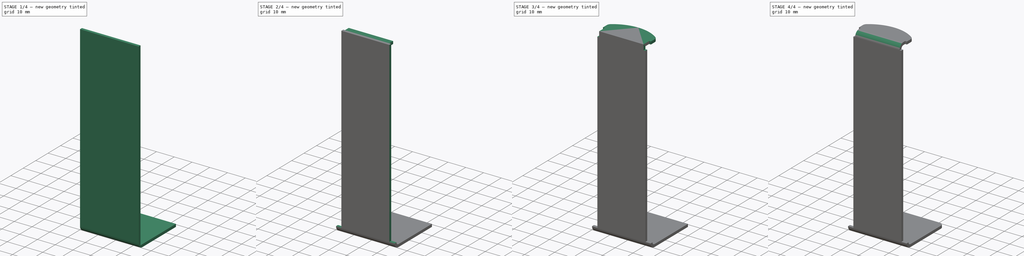
[diagram: build sequence overview — one tinted view per stage of 4, left to right]
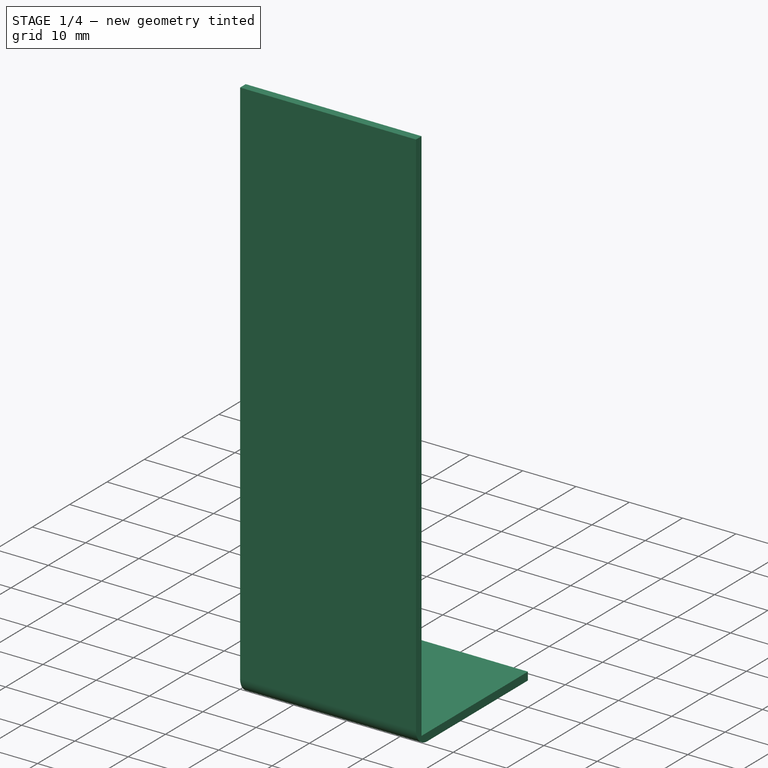
[diagram: stage 1 of 4 — iso view after this stage's code; geometry added in this stage tinted green]
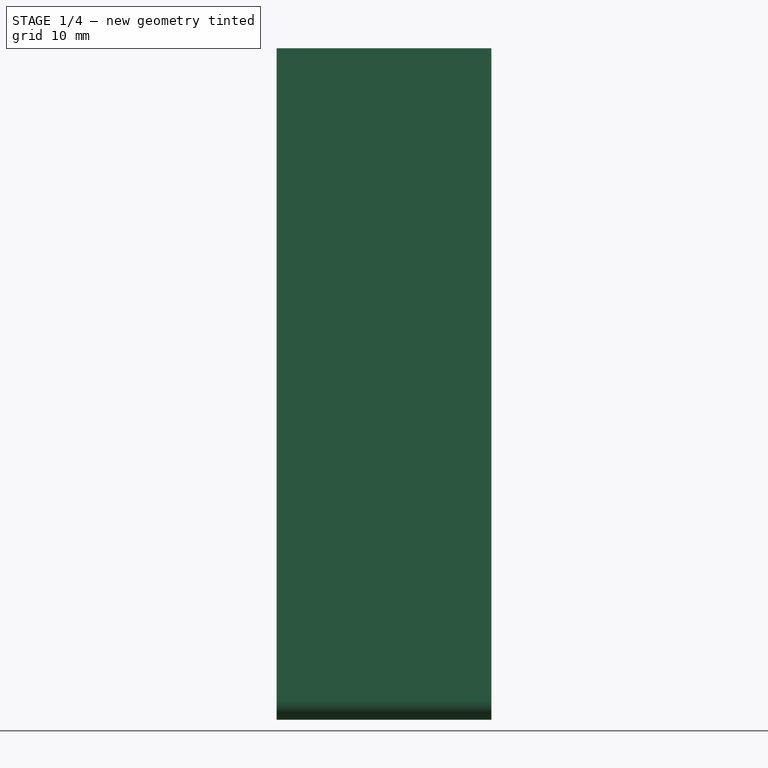
[diagram: stage 1 of 4 — front view after this stage's code; geometry added in this stage tinted green]
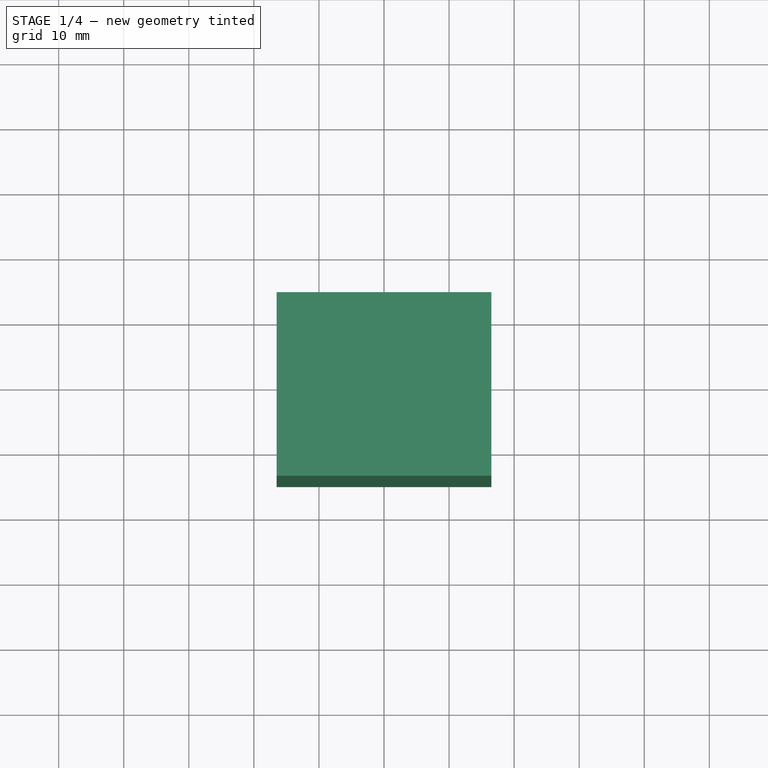
[diagram: stage 1 of 4 — top view after this stage's code; geometry added in this stage tinted green]
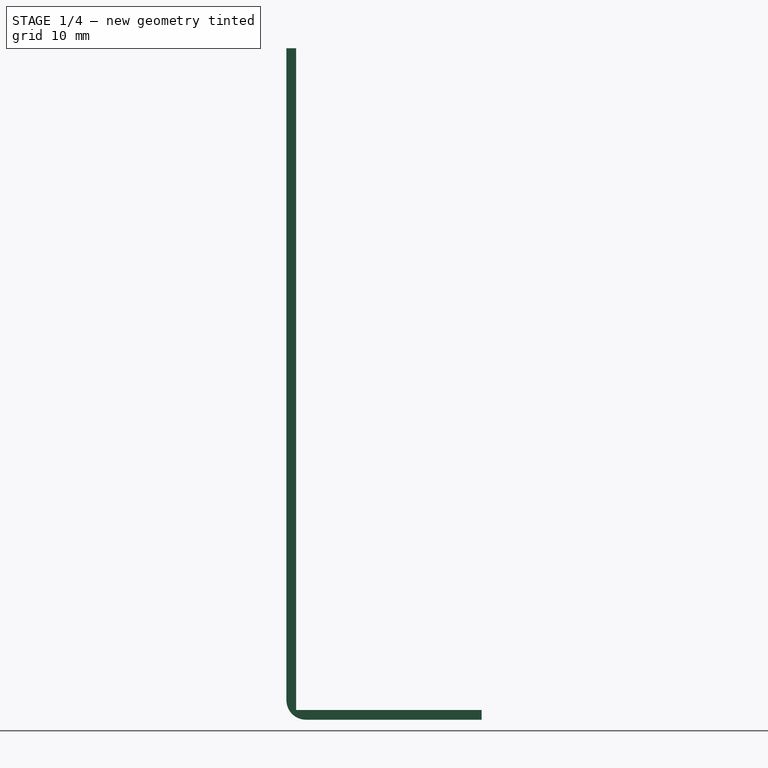
[diagram: stage 1 of 4 — right view after this stage's code; geometry added in this stage tinted green]
FCSTD DOCUMENT  (FreeCAD 0.14R3310 (Git))
Label: 41. SOPORTE SPOOL
License: CC-BY 3.0
LicenseURL: http://creativecommons.org/licenses/by/3.0/
objects: Sketcher::SketchObject×6, PartDesign::Fillet×5, PartDesign::Pad×4, PartDesign::Pocket×2
note: 23 computed .brp shape members not serialized (recipe doc carries the construction recipe); baked Part::Feature solids carry a one-line shape summary decoded from their .brp

FEATURE [Sketcher::SketchObject] Sketch
  sketch-geometry (4):
    g0: LineSegment StartX=-16.5 StartY=15 StartZ=0 EndX=16.5 EndY=15 EndZ=0
    g1: LineSegment StartX=16.5 StartY=15 StartZ=0 EndX=16.5 EndY=-15 EndZ=0
    g2: LineSegment StartX=16.5 StartY=-15 StartZ=0 EndX=-16.5 EndY=-15 EndZ=0
    g3: LineSegment StartX=-16.5 StartY=-15 StartZ=0 EndX=-16.5 EndY=15 EndZ=0
  constraints (11):
    c: Coincident(g0,g1)
    c: Coincident(g1,g2)
    c: Coincident(g2,g3)
    c: Coincident(g3,g0)
    c: Horizontal(g0)
    c: Horizontal(g2)
    c: Vertical(g1)
    c: Vertical(g3)
    c: Symmetric(g1,g0,g-1)
    c: Distance(g1) = 30
    c: Distance(g0) = 33
FEATURE [PartDesign::Pad] Pad
  Length = 1.5
  Length2 = 100
  Sketch = -> Sketch
  Type = 0
FEATURE [Sketcher::SketchObject] Sketch001
  ExternalGeometry = -> [Pad]
  Placement = pos=(0,0,1.5) rot=(0,0,1;0rad)
  Support = -> Pad [Face6]
  sketch-geometry (4):
    g0: LineSegment StartX=16.5 StartY=-15 StartZ=0 EndX=-16.5 EndY=-15 EndZ=0
    g1: LineSegment StartX=-16.5 StartY=-15 StartZ=0 EndX=-16.5 EndY=-13.5 EndZ=0
    g2: LineSegment StartX=-16.5 StartY=-13.5 StartZ=0 EndX=16.5 EndY=-13.5 EndZ=0
    g3: LineSegment StartX=16.5 StartY=-13.5 StartZ=0 EndX=16.5 EndY=-15 EndZ=0
  constraints (11):
    c: Coincident(g0,g1)
    c: Coincident(g1,g2)
    c: Coincident(g2,g3)
    c: Coincident(g3,g0)
    c: Horizontal(g0)
    c: Horizontal(g2)
    c: Vertical(g1)
    c: Vertical(g3)
    c: Coincident(g0,g-3)
    c: Coincident(g0,g-3)
    c: Distance(g1) = 1.5
FEATURE [PartDesign::Pad] Pad001
  Length = 101.7
  Length2 = 100
  Sketch = -> Sketch001
  Type = 0
FEATURE [PartDesign::Fillet] Fillet
  Base = -> Pad001 [Edge6]
  Radius = 3
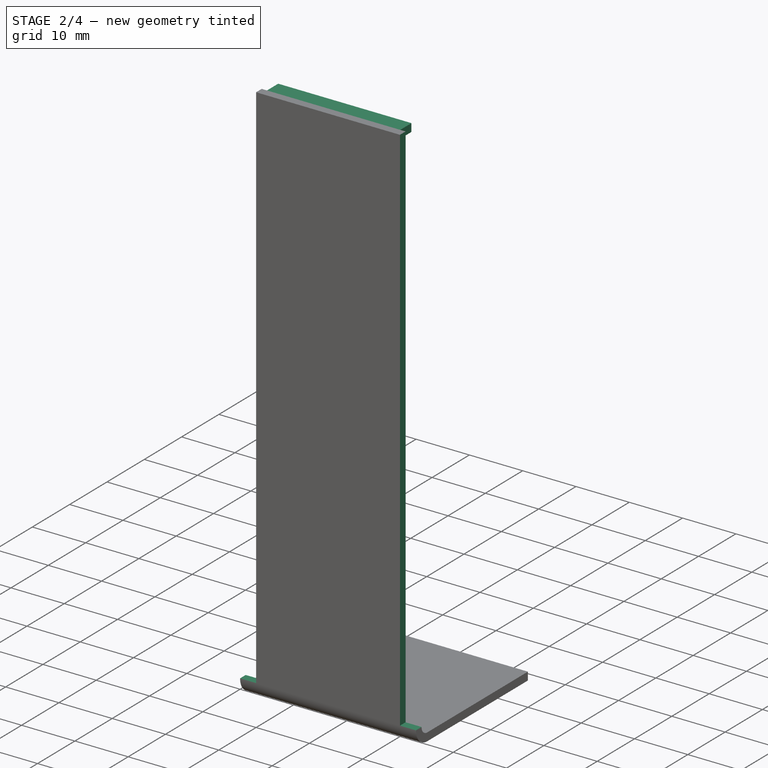
[diagram: stage 2 of 4 — iso view after this stage's code; geometry added in this stage tinted green]
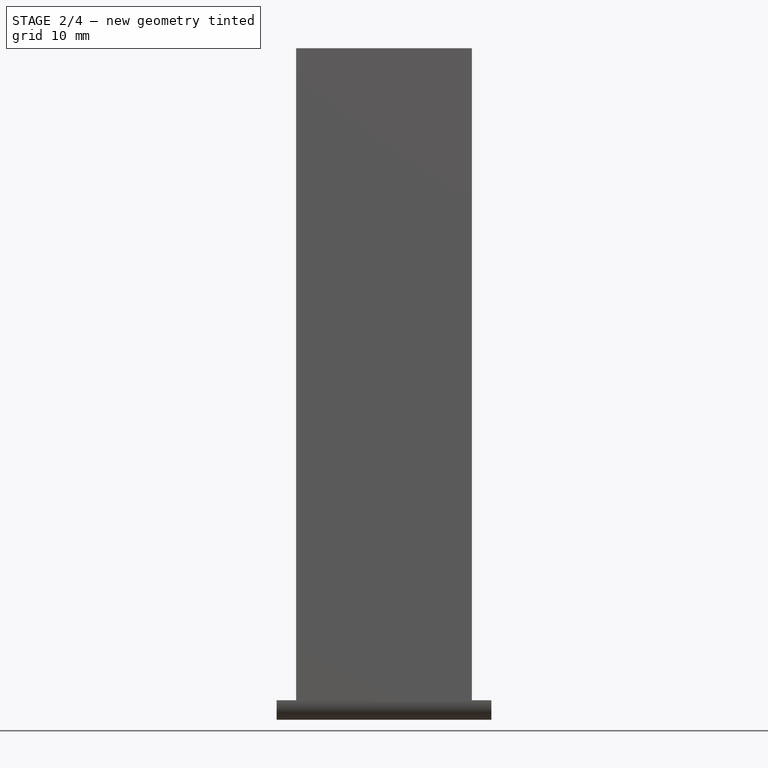
[diagram: stage 2 of 4 — front view after this stage's code; geometry added in this stage tinted green]
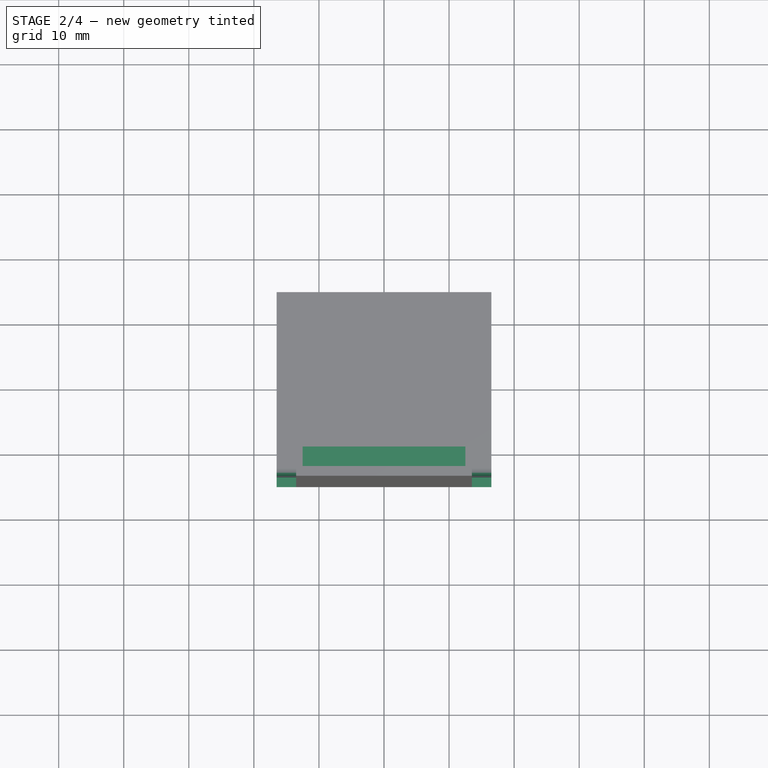
[diagram: stage 2 of 4 — top view after this stage's code; geometry added in this stage tinted green]
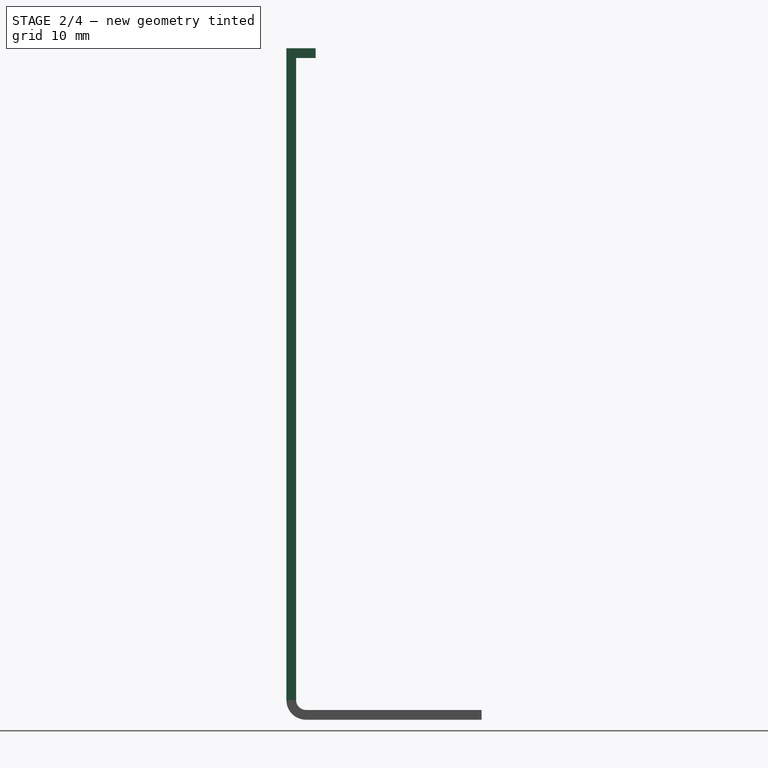
[diagram: stage 2 of 4 — right view after this stage's code; geometry added in this stage tinted green]
FEATURE [PartDesign::Fillet] Fillet001
  Base = -> Fillet [Edge21]
  Radius = 1.5
FEATURE [Sketcher::SketchObject] Sketch002
  ExternalGeometry = -> [Fillet001]
  Placement = pos=(0,-13.5,0) rot=(0,0.707107,0.707107;3.14159rad)
  Support = -> Fillet001 [Face2]
  sketch-geometry (8):
    g0: LineSegment StartX=-16.5 StartY=113 StartZ=0 EndX=-13.5 EndY=113 EndZ=0
    g1: LineSegment StartX=-13.5 StartY=113 StartZ=0 EndX=-13.5 EndY=3 EndZ=0
    g2: LineSegment StartX=-13.5 StartY=3 StartZ=0 EndX=-16.5 EndY=3 EndZ=0
    g3: LineSegment StartX=-16.5 StartY=3 StartZ=0 EndX=-16.5 EndY=113 EndZ=0
    g4: LineSegment StartX=16.5 StartY=3 StartZ=0 EndX=13.5 EndY=3 EndZ=0
    g5: LineSegment StartX=13.5 StartY=3 StartZ=0 EndX=13.5 EndY=113 EndZ=0
    g6: LineSegment StartX=13.5 StartY=113 StartZ=0 EndX=16.5 EndY=113 EndZ=0
    g7: LineSegment StartX=16.5 StartY=113 StartZ=0 EndX=16.5 EndY=3 EndZ=0
  constraints (22):
    c: Coincident(g0,g1)
    c: Coincident(g1,g2)
    c: Coincident(g2,g3)
    c: Coincident(g3,g0)
    c: Horizontal(g0)
    c: Horizontal(g2)
    c: Vertical(g1)
    c: Vertical(g3)
    c: PointOnObject(g1,g-3)
    c: Coincident(g2,g-3)
    c: Distance(g0) = 3
    c: Distance(g3) = 110
    c: Coincident(g4,g5)
    c: Coincident(g5,g6)
    c: Coincident(g6,g7)
    c: Coincident(g7,g4)
    c: Horizontal(g4)
    c: Horizontal(g6)
    c: Vertical(g5)
    c: Vertical(g7)
    c: Coincident(g4,g-3)
    c: Symmetric(g0,g5,g-2)
FEATURE [PartDesign::Pocket] Pocket
  Length = 5
  Sketch = -> Sketch002
  Type = 0
FEATURE [Sketcher::SketchObject] Sketch003
  ExternalGeometry = -> [Pocket]
  Placement = pos=(0,-13.5,0) rot=(0,0.707107,0.707107;3.14159rad)
  Support = -> Pocket [Face12]
  sketch-geometry (4):
    g0: LineSegment StartX=-12.5 StartY=103.2 StartZ=0 EndX=12.5 EndY=103.2 EndZ=0
    g1: LineSegment StartX=12.5 StartY=103.2 StartZ=0 EndX=12.5 EndY=101.7 EndZ=0
    g2: LineSegment StartX=12.5 StartY=101.7 StartZ=0 EndX=-12.5 EndY=101.7 EndZ=0
    g3: LineSegment StartX=-12.5 StartY=101.7 StartZ=0 EndX=-12.5 EndY=103.2 EndZ=0
  constraints (12):
    c: Coincident(g0,g1)
    c: Coincident(g1,g2)
    c: Coincident(g2,g3)
    c: Coincident(g3,g0)
    c: Horizontal(g0)
    c: Horizontal(g2)
    c: Vertical(g1)
    c: Vertical(g3)
    c: PointOnObject(g0,g-3)
    c: Distance(g1) = 1.5
    c: Symmetric(g0,g0,g-2)
    c: Distance(g2) = 25
FEATURE [PartDesign::Pad] Pad002
  Length = 3
  Length2 = 100
  Sketch = -> Sketch003
  Type = 0
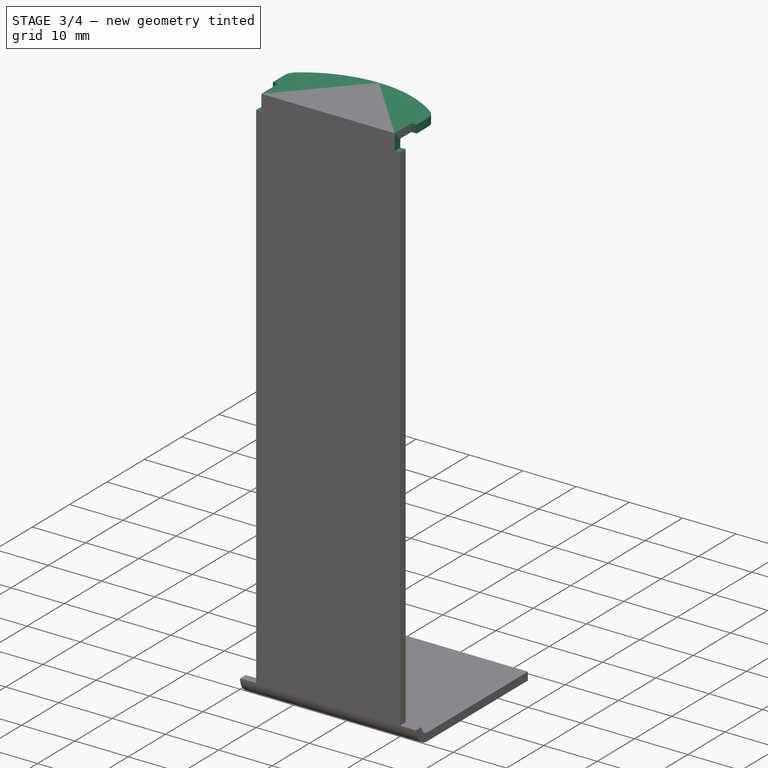
[diagram: stage 3 of 4 — iso view after this stage's code; geometry added in this stage tinted green]
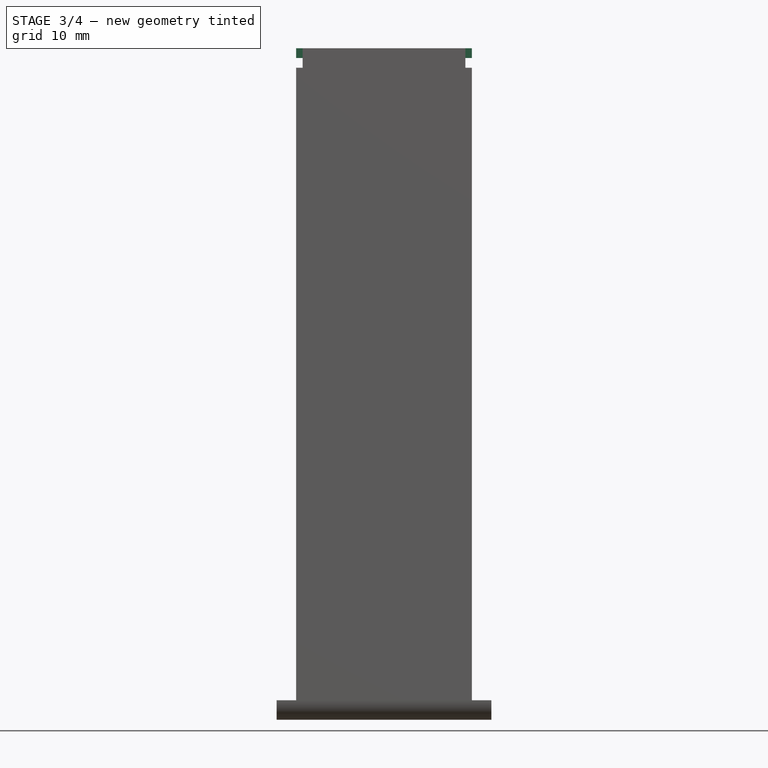
[diagram: stage 3 of 4 — front view after this stage's code; geometry added in this stage tinted green]
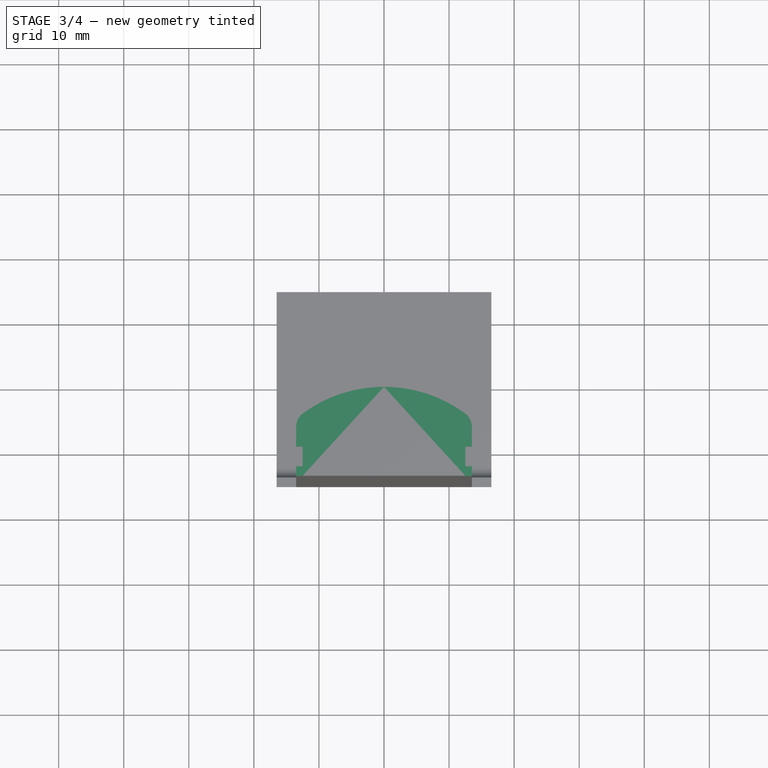
[diagram: stage 3 of 4 — top view after this stage's code; geometry added in this stage tinted green]
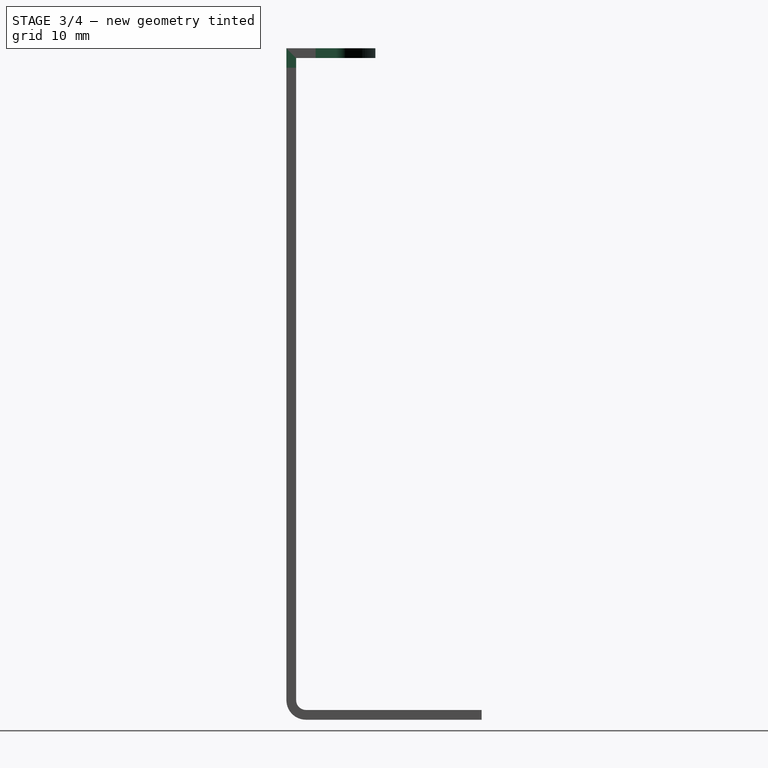
[diagram: stage 3 of 4 — right view after this stage's code; geometry added in this stage tinted green]
FEATURE [Sketcher::SketchObject] Sketch004
  ExternalGeometry = -> [Pad002]
  Placement = pos=(0,-15,0) rot=(1,0,0;1.5708rad)
  Support = -> Pad002 [Face10]
  sketch-geometry (8):
    g0: LineSegment StartX=-13.5 StartY=103.2 StartZ=0 EndX=-12.5 EndY=103.2 EndZ=0
    g1: LineSegment StartX=-12.5 StartY=103.2 StartZ=0 EndX=-12.5 EndY=100.2 EndZ=0
    g2: LineSegment StartX=-12.5 StartY=100.2 StartZ=0 EndX=-13.5 EndY=100.2 EndZ=0
    g3: LineSegment StartX=-13.5 StartY=100.2 StartZ=0 EndX=-13.5 EndY=103.2 EndZ=0
    g4: LineSegment StartX=12.5 StartY=103.2 StartZ=0 EndX=13.5 EndY=103.2 EndZ=0
    g5: LineSegment StartX=13.5 StartY=103.2 StartZ=0 EndX=13.5 EndY=100.2 EndZ=0
    g6: LineSegment StartX=13.5 StartY=100.2 StartZ=0 EndX=12.5 EndY=100.2 EndZ=0
    g7: LineSegment StartX=12.5 StartY=100.2 StartZ=0 EndX=12.5 EndY=103.2 EndZ=0
  constraints (21):
    c: Coincident(g0,g1)
    c: Coincident(g1,g2)
    c: Coincident(g2,g3)
    c: Coincident(g3,g0)
    c: Horizontal(g0)
    c: Horizontal(g2)
    c: Vertical(g1)
    c: Vertical(g3)
    c: Coincident(g4,g5)
    c: Coincident(g5,g6)
    c: Coincident(g6,g7)
    c: Coincident(g7,g4)
    c: Horizontal(g4)
    c: Horizontal(g6)
    c: Vertical(g5)
    c: Vertical(g7)
    c: Symmetric(g6,g1,g-2)
    c: Symmetric(g0,g4,g-2)
    c: Coincident(g0,g-3)
    c: Distance(g2) = 1
    c: Distance(g1) = 3
FEATURE [PartDesign::Pocket] Pocket001
  Length = 5
  Sketch = -> Sketch004
  Type = 0
FEATURE [Sketcher::SketchObject] Sketch005
  ExternalGeometry = -> [Pocket001]
  Placement = pos=(0,0,103.2) rot=(0,0,1;0rad)
  Support = -> Pocket001 [Face14]
  sketch-geometry (6):
    g0: LineSegment StartX=-13.5 StartY=-10.5 StartZ=0 EndX=13.5 EndY=-10.5 EndZ=0
    g1: LineSegment StartX=-13.5 StartY=-10.5 StartZ=0 EndX=-13.5 EndY=-7.46 EndZ=0
    g2: LineSegment StartX=13.5 StartY=-10.5 StartZ=0 EndX=13.5 EndY=-7.46 EndZ=0
    g3: ArcOfCircle CenterX=-11 CenterY=-7.45553 CenterZ=0 NormalX=0 NormalY=0 NormalZ=1 Radius=2.5 StartAngle=2.20756 EndAngle=3.14338
    g4: ArcOfCircle CenterX=0 CenterY=-22.33 CenterZ=0 NormalX=0 NormalY=0 NormalZ=1 Radius=21 StartAngle=0.934034 EndAngle=2.20756
    g5: ArcOfCircle CenterX=11 CenterY=-7.45553 CenterZ=0 NormalX=0 NormalY=0 NormalZ=1 Radius=2.5 StartAngle=6.2814 EndAngle=7.21722
  constraints (21):
    c: Horizontal(g0)
    c: PointOnObject(g-3,g0)
    c: Symmetric(g0,g0,g-2)
    c: Distance(g-3,g0) = 1
    c: Coincident(g1,g0)
    c: Vertical(g1)
    c: Coincident(g2,g0)
    c: Vertical(g2)
    c: Symmetric(g1,g2,g-2)
    c: Distance(g1) = 3.04
    c: Coincident(g3,g1)
    c: Radius(g3) = 2.5
    c: PointOnObject(g4,g-2)
    c: Coincident(g4,g3)
    c: Tangent(g3,g4)
    c: Radius(g4) = 21
    c: Coincident(g5,g2)
    c: Coincident(g5,g4)
    c: Tangent(g4,g5)
    c: Equal(g5,g3)
    c: Distance(g4,g0) = 11.83
FEATURE [PartDesign::Pad] Pad003
  Length = 1.5
  Length2 = 100
  Reversed = true
  Sketch = -> Sketch005
  Type = 0
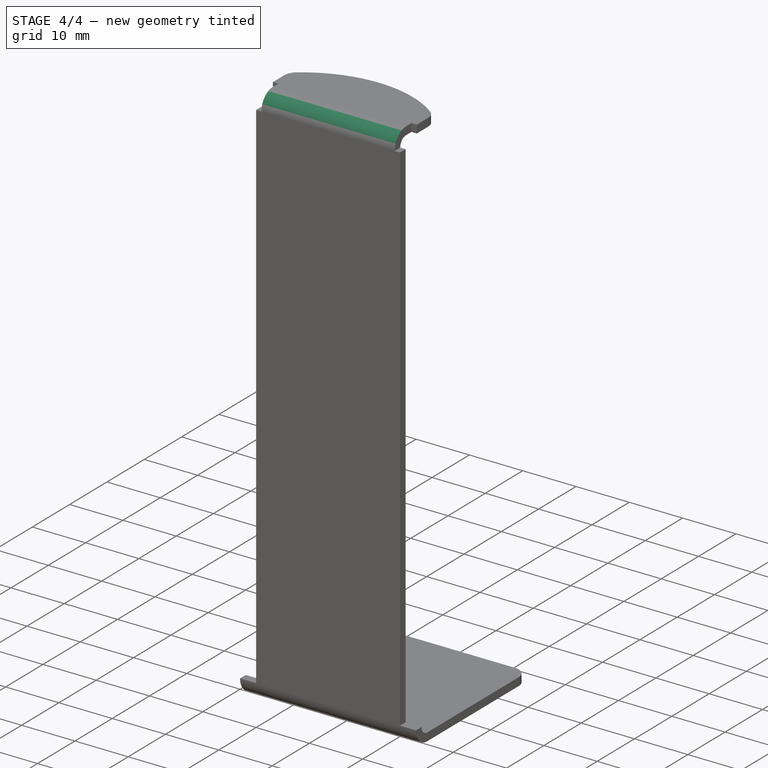
[diagram: stage 4 of 4 — iso view after this stage's code; geometry added in this stage tinted green]
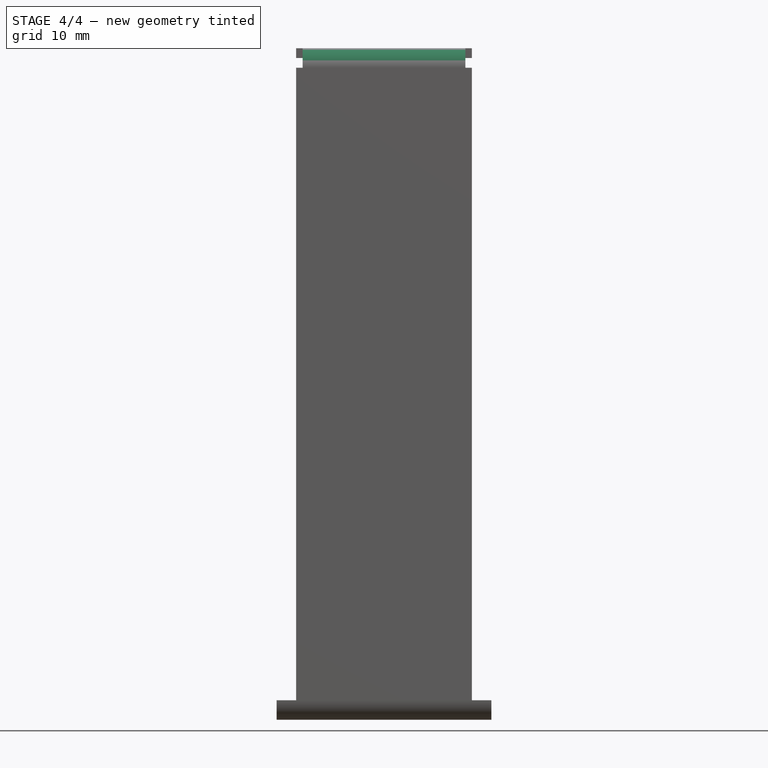
[diagram: stage 4 of 4 — front view after this stage's code; geometry added in this stage tinted green]
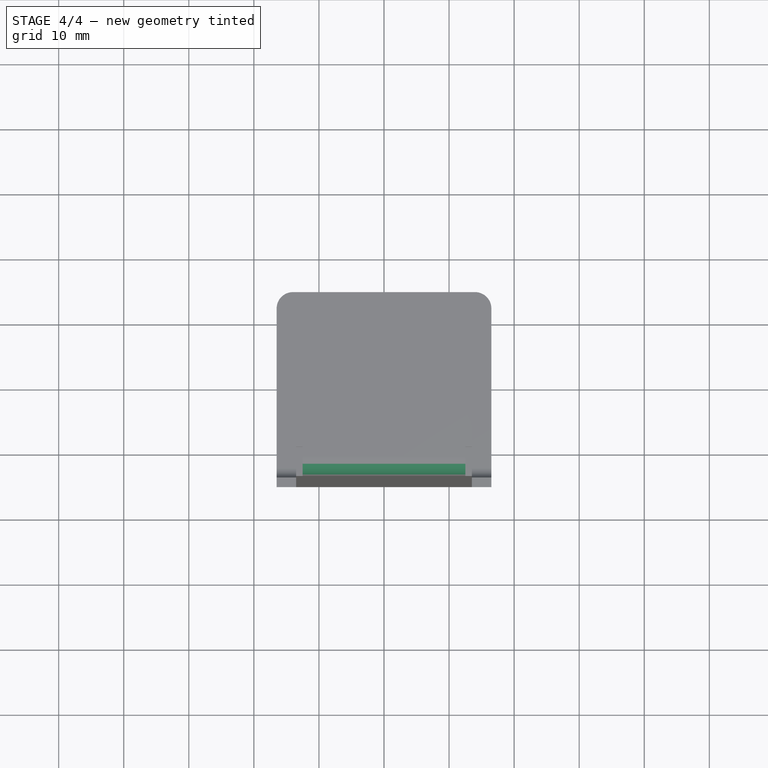
[diagram: stage 4 of 4 — top view after this stage's code; geometry added in this stage tinted green]
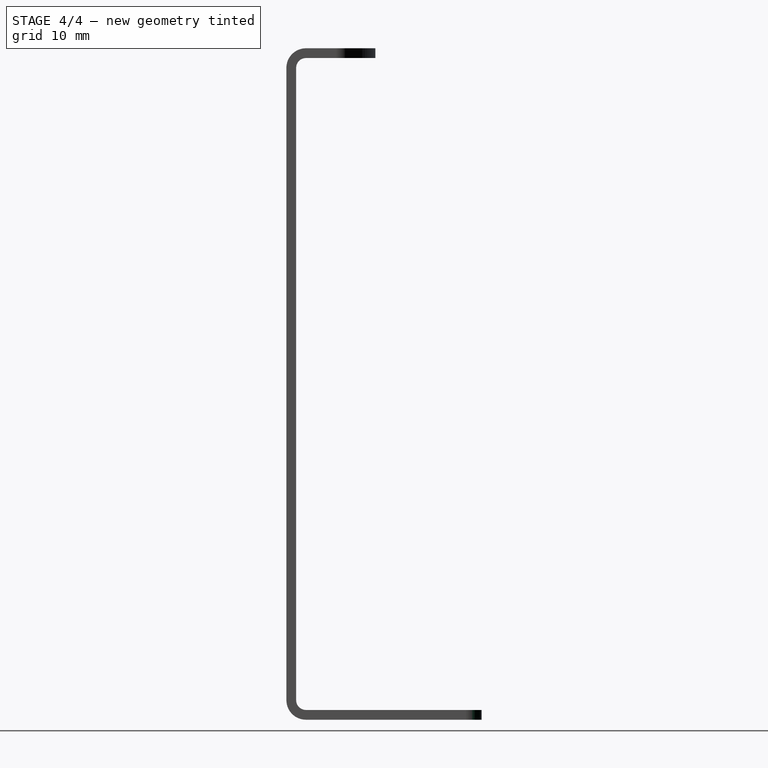
[diagram: stage 4 of 4 — right view after this stage's code; geometry added in this stage tinted green]
FEATURE [PartDesign::Fillet] Fillet002
  Base = -> Pad003 [Edge29]
  Radius = 3
FEATURE [PartDesign::Fillet] Fillet003
  Base = -> Fillet002 [Edge41]
  Radius = 1.5
FEATURE [PartDesign::Fillet] Fillet004
  Base = -> Fillet003 [Edge69,Edge64]
  Radius = 2.5
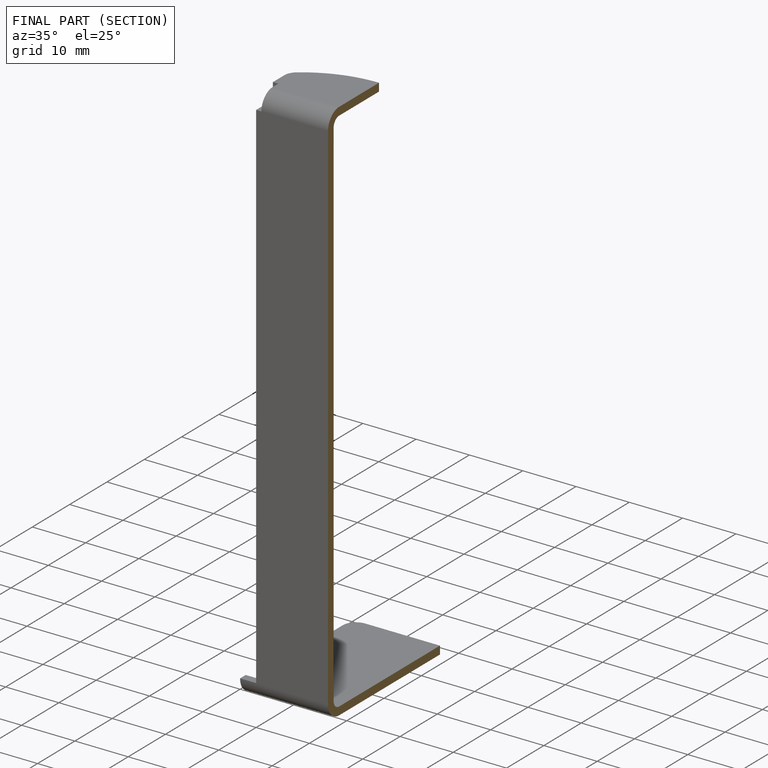
[diagram: finished part — half-section view (interior)]
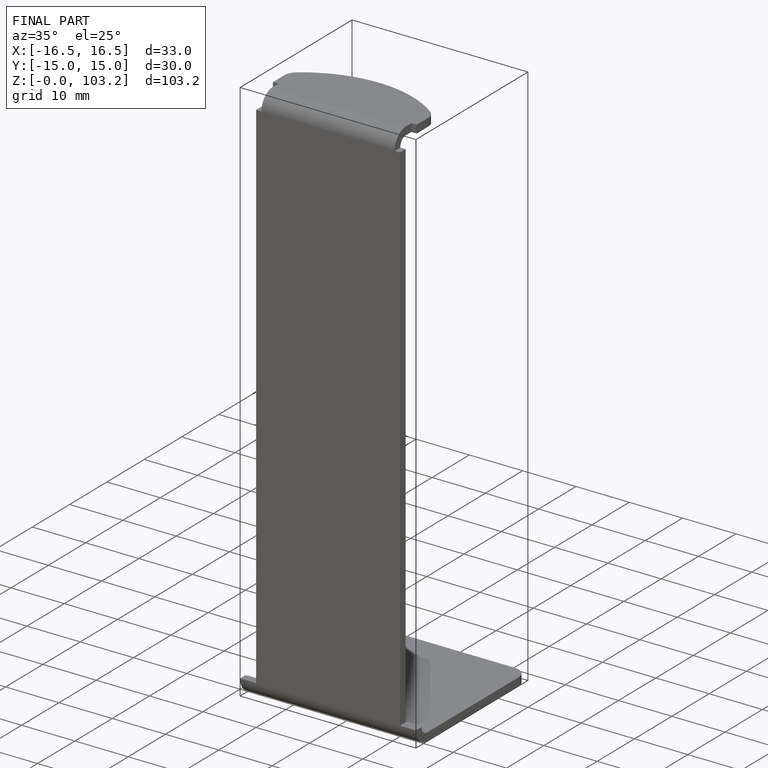
[diagram: finished part — iso view with bounding-box wireframe]
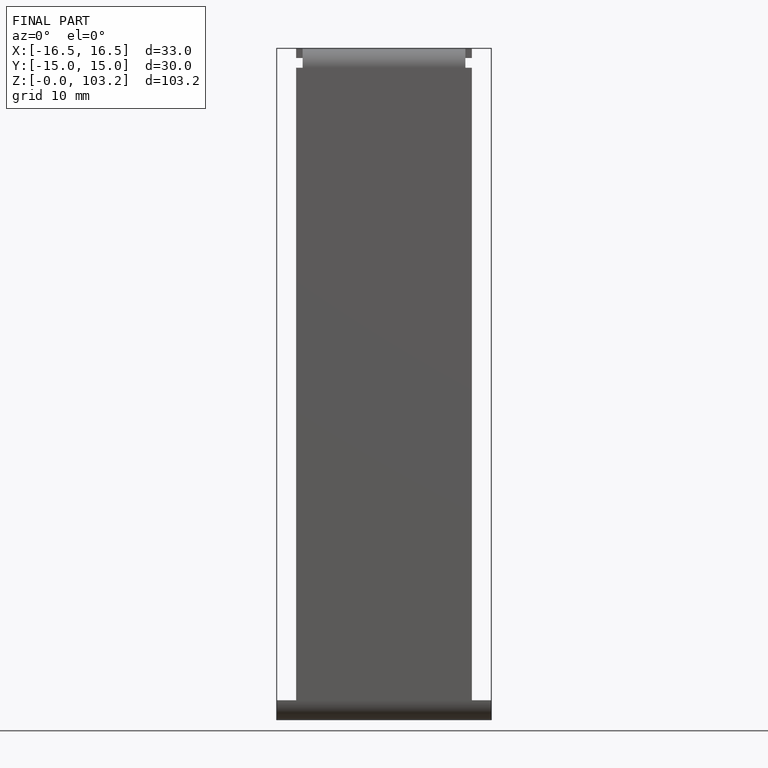
[diagram: finished part — front view with bounding-box wireframe]
